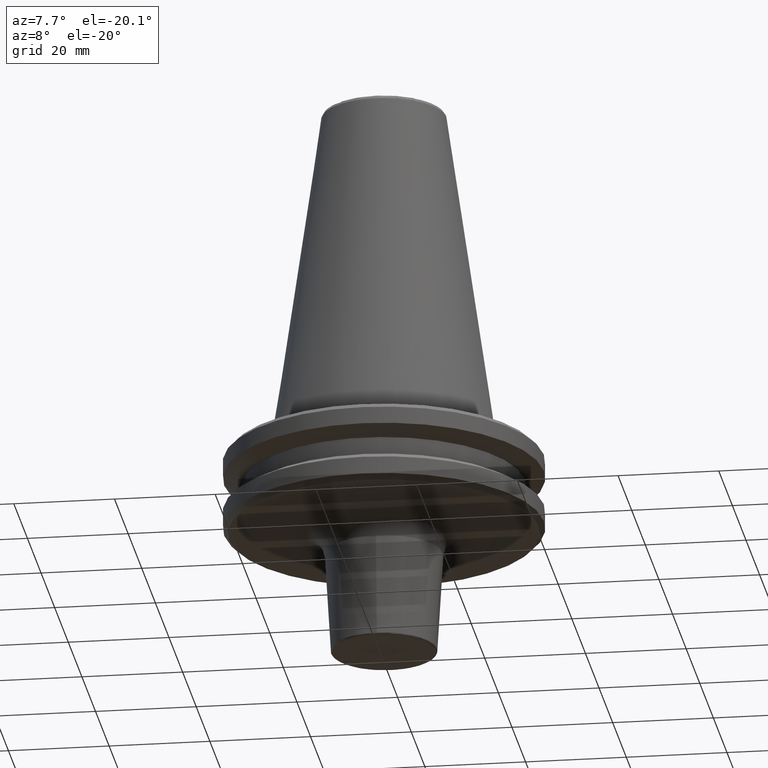
[diagram: clean part render]
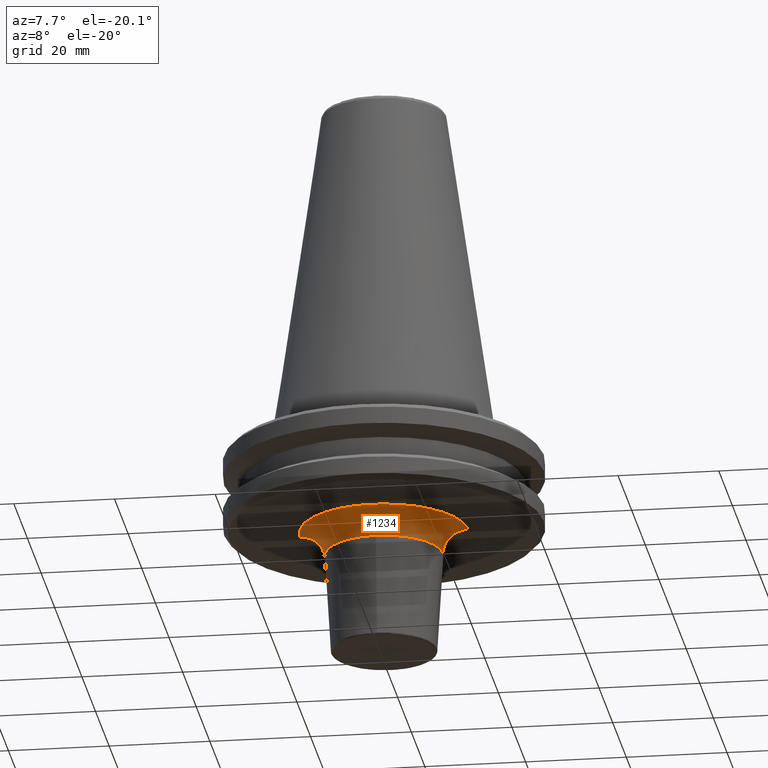
[diagram: same view with one face highlighted and labeled with its STEP entity id]
A machine part, auxiliary view. The second image highlights one B-rep face of the part: STEP entity #1234.
In plain terms, the highlighted face is a freeform B-spline surface patch.
Its self-contained STEP definition (entity closure, byte-faithful):
#3 = CARTESIAN_POINT ( 'NONE',  ( -3.273211614280688400, -16.38550312319334900, -19.10000000000000900 ) ) ;
#17 = CARTESIAN_POINT ( 'NONE',  ( -9.971919922135517900, -13.41271634861184300, -19.10000000000000500 ) ) ;
#27 = CARTESIAN_POINT ( 'NONE',  ( 2.977580239806947700, -16.44157557723119800, -19.10000000000000500 ) ) ;
#42 = CARTESIAN_POINT ( 'NONE',  ( 5.929593815002739600, -15.62173324705691100, -19.10000000000000100 ) ) ;
#54 = CARTESIAN_POINT ( 'NONE',  ( -16.33148562144074100, -3.573096658829935100, -19.10000000000000100 ) ) ;
#58 = CARTESIAN_POINT ( 'NONE',  ( -16.45283330147772500, -2.914738401242650500, -19.10000000000000500 ) ) ;
#83 = CARTESIAN_POINT ( 'NONE',  ( 7.443077310556489600, -14.97843021606886200, -19.10000000000000500 ) ) ;
#88 = CARTESIAN_POINT ( 'NONE',  ( -3.107017245632365500, -16.41761142749638900, -19.10000000000001200 ) ) ;
#111 = CARTESIAN_POINT ( 'NONE',  ( 4.361363818637564700, -16.14579171900091800, -19.10000000000000500 ) ) ;
#133 = CARTESIAN_POINT ( 'NONE',  ( -15.56066614214635800, -6.087461871301999700, -19.10000000000000100 ) ) ;
#139 = CARTESIAN_POINT ( 'NONE',  ( -16.70899191454727600, 2.046261346512933100E-015, -19.10000000000000900 ) ) ;
#172 = CARTESIAN_POINT ( 'NONE',  ( -15.62173324705783800, -5.929593814998911600, -19.10000000000000500 ) ) ;
#177 = CARTESIAN_POINT ( 'NONE',  ( -16.57242241647687900, -2.159112028500115500, -19.10000000000000900 ) ) ;
#179 = CARTESIAN_POINT ( 'NONE',  ( -3.966775875733719500, -16.23535618899792300, -19.10000000000000500 ) ) ;
#181 = CARTESIAN_POINT ( 'NONE',  ( -6.216084941042275600, -15.50973603678827800, -19.10000000000000500 ) ) ;
#188 = B_SPLINE_CURVE_WITH_KNOTS ( 'NONE', 3,
 ( #774, #835, #327, #177, #285, #228, #58, #913, #485, #54, #292, #472, #197, #172, #265, #133, #916, #782, #426, #679, #768, #465, #801, #738, #711, #357, #279, #204, #17, #684, #538, #798, #784, #639, #941, #847, #433, #1506, #201, #181, #258, #862, #249, #179, #911, #3, #297, #88, #732, #1400, #702, #663, #554, #191, #898, #495, #367, #27, #571, #302, #111, #949, #436, #42, #418, #375, #373, #1356, #83, #351, #875, #1359, #458, #1213, #483, #382, #1204, #1241, #1277, #1275, #944, #1095, #1381, #1138, #1157, #904, #923, #1267, #1081, #942, #1336, #975, #1231, #1065, #1202, #1174, #1225, #1124, #1114, #1181, #1144, #1238 ),
 .UNSPECIFIED., .F., .F.,
 ( 4, 1, 1, 1, 1, 2, 2, 1, 1, 1, 1, 2, 2, 1, 1, 1, 2, 2, 2, 1, 1, 1, 2, 2, 1, 1, 1, 1, 2, 2, 1, 1, 1, 1, 2, 2, 2, 1, 1, 1, 1, 2, 2, 1, 1, 1, 1, 2, 2, 1, 1, 1, 2, 2, 2, 1, 1, 1, 2, 2, 1, 1, 1, 1, 2, 2, 1, 1, 1, 1, 2, 2, 4 ),
 ( 0.0000000000000000000, 0.03124999999999795300, 0.04687499999999691900, 0.05468749999999639900, 0.05859374999999614900, 0.06054687499999603100, 0.06249999999999592000, 0.09374999999999432400, 0.1093749999999935300, 0.1171874999999931000, 0.1210937499999929200, 0.1230468749999928800, 0.1249999999999928400, 0.1562499999999928400, 0.1718749999999928900, 0.1796874999999929200, 0.1835937499999928700, 0.1874999999999927800, 0.2499999999999920600, 0.2812499999999917300, 0.2968749999999915600, 0.3046874999999914000, 0.3085937499999913400, 0.3124999999999912300, 0.3437499999999905600, 0.3593749999999902300, 0.3671874999999900600, 0.3710937499999899500, 0.3730468749999899500, 0.3749999999999899000, 0.4062499999999899500, 0.4218749999999899500, 0.4296874999999899500, 0.4335937499999899000, 0.4355468749999899500, 0.4374999999999900100, 0.4999999999999909000, 0.5312499999999913400, 0.5468749999999914500, 0.5546874999999916700, 0.5585937499999916700, 0.5605468749999916700, 0.5624999999999916700, 0.5937499999999923400, 0.6093749999999925600, 0.6171874999999927800, 0.6210937499999928900, 0.6230468749999927800, 0.6249999999999927800, 0.6562499999999935600, 0.6718749999999940000, 0.6796874999999941200, 0.6835937499999942300, 0.6874999999999942300, 0.7499999999999961100, 0.7812499999999971100, 0.7968749999999976700, 0.8046874999999978900, 0.8085937499999980000, 0.8124999999999981100, 0.8437499999999986700, 0.8593749999999990000, 0.8671874999999991100, 0.8710937499999992200, 0.8730468749999992200, 0.8749999999999992200, 0.9062499999999995600, 0.9218749999999997800, 0.9296874999999997800, 0.9335937499999998900, 0.9355468749999998900, 0.9374999999999998900, 1.000000000000000000 ),
 .UNSPECIFIED. ) ;
#189 = DIRECTION ( 'NONE',  ( -1.224646799147353200E-016, -1.000000000000000000, 0.0000000000000000000 ) ) ;
#191 = CARTESIAN_POINT ( 'NONE',  ( 2.158997013189260200, -16.57244369657584600, -19.10000000000000500 ) ) ;
#197 = CARTESIAN_POINT ( 'NONE',  ( -15.70488065282972600, -5.707912317699030100, -19.10000000000000500 ) ) ;
#201 = CARTESIAN_POINT ( 'NONE',  ( -6.281523939451907300, -15.48335104158634000, -19.10000000000000100 ) ) ;
#204 = CARTESIAN_POINT ( 'NONE',  ( -10.76761953157990300, -12.79983338334750300, -19.10000000000000500 ) ) ;
#228 = CARTESIAN_POINT ( 'NONE',  ( -16.46945046779879400, -2.820434997126953600, -19.10000000000000900 ) ) ;
#230 = VERTEX_POINT ( 'NONE', #513 ) ;
#249 = CARTESIAN_POINT ( 'NONE',  ( -4.880297734936129400, -15.99658572075232300, -19.10000000000000900 ) ) ;
#258 = CARTESIAN_POINT ( 'NONE',  ( -6.181971338236482300, -15.52336150878758800, -19.10000000000000500 ) ) ;
#259 = EDGE_CURVE ( 'NONE', #1043, #622, #188, .T. ) ;
#265 = CARTESIAN_POINT ( 'NONE',  ( -15.58521129710780300, -6.024348239628270800, -19.09999999999999800 ) ) ;
#279 = CARTESIAN_POINT ( 'NONE',  ( -11.40735166676703300, -12.22275759030630500, -19.10000000000000500 ) ) ;
#285 = CARTESIAN_POINT ( 'NONE',  ( -16.50631696794279100, -2.600222415168852700, -19.09999999999999800 ) ) ;
#292 = CARTESIAN_POINT ( 'NONE',  ( -16.14579171900486200, -4.361363818621245300, -19.10000000000001600 ) ) ;
#297 = CARTESIAN_POINT ( 'NONE',  ( -3.173529372140885000, -16.40488619115063100, -19.10000000000000100 ) ) ;
#302 = CARTESIAN_POINT ( 'NONE',  ( 3.573096658839261000, -16.33148562143848900, -19.10000000000000500 ) ) ;
#326 = CARTESIAN_POINT ( 'NONE',  ( -11.71796768721838500, 1.740649254289672300E-015, -23.80053854636027200 ) ) ;
#327 = CARTESIAN_POINT ( 'NONE',  ( -16.67412310652929700, -1.274150364152470500, -19.10000000000000500 ) ) ;
#335 = ORIENTED_EDGE ( 'NONE', *, *, #965, .F. ) ;
#351 = CARTESIAN_POINT ( 'NONE',  ( 8.304593459409087300, -14.50404968136377400, -19.10000000000000500 ) ) ;
#357 = CARTESIAN_POINT ( 'NONE',  ( -12.63042113516865900, -10.99960928809012200, -19.10000000000000900 ) ) ;
#367 = CARTESIAN_POINT ( 'NONE',  ( 2.914717349333073600, -16.45283719649584200, -19.10000000000000500 ) ) ;
#373 = CARTESIAN_POINT ( 'NONE',  ( 6.117688604166877700, -15.54881040975424100, -19.10000000000000100 ) ) ;
#375 = CARTESIAN_POINT ( 'NONE',  ( 6.087461871303152500, -15.56066614214608600, -19.10000000000000500 ) ) ;
#382 = CARTESIAN_POINT ( 'NONE',  ( 10.99960928808820300, -12.63042113516870500, -19.10000000000000100 ) ) ;
#399 = DIRECTION ( 'NONE',  ( 1.000000000000000000, 0.0000000000000000000, 0.0000000000000000000 ) ) ;
#400 = DIRECTION ( 'NONE',  ( -0.0000000000000000000, -0.0000000000000000000, -1.000000000000000000 ) ) ;
#402 = CARTESIAN_POINT ( 'NONE',  ( 0.0000000000000000000, 0.0000000000000000000, -23.80053854636027200 ) ) ;
#418 = CARTESIAN_POINT ( 'NONE',  ( 6.024348239630517900, -15.58521129710726400, -19.10000000000000900 ) ) ;
#426 = CARTESIAN_POINT ( 'NONE',  ( -14.97843021606744300, -7.443077310566718700, -19.10000000000000500 ) ) ;
#430 = ORIENTED_EDGE ( 'NONE', *, *, #259, .F. ) ;
#433 = CARTESIAN_POINT ( 'NONE',  ( -6.607123291484789700, -15.34836918350315900, -19.10000000000000900 ) ) ;
#436 = CARTESIAN_POINT ( 'NONE',  ( 5.707912317706178100, -15.70488065282799400, -19.10000000000000100 ) ) ;
#458 = CARTESIAN_POINT ( 'NONE',  ( 9.024928931269119700, -14.06222087813214100, -19.10000000000000100 ) ) ;
#465 = CARTESIAN_POINT ( 'NONE',  ( -14.13790343973139900, -8.905924171326432800, -19.10000000000000500 ) ) ;
#472 = CARTESIAN_POINT ( 'NONE',  ( -15.86289355459404000, -5.262197963773768800, -19.10000000000000900 ) ) ;
#483 = CARTESIAN_POINT ( 'NONE',  ( 10.10853159733515700, -13.35436265844308100, -19.10000000000000500 ) ) ;
#485 = CARTESIAN_POINT ( 'NONE',  ( -16.43620118971364300, -3.007126828542805000, -19.10000000000000900 ) ) ;
#495 = CARTESIAN_POINT ( 'NONE',  ( 2.820399054842309500, -16.46945711782972300, -19.10000000000000100 ) ) ;
#513 = CARTESIAN_POINT ( 'NONE',  ( 11.71796768721838500, 0.0000000000000000000, -23.80053854636027200 ) ) ;
#538 = CARTESIAN_POINT ( 'NONE',  ( -9.383296176287753800, -13.82569420036865400, -19.10000000000000100 ) ) ;
#540 = CARTESIAN_POINT ( 'NONE',  ( -16.70899191454727600, 2.046261346512933100E-015, -24.10000000000000900 ) ) ;
#554 = CARTESIAN_POINT ( 'NONE',  ( 1.273997010404657000, -16.67415147999460200, -19.09999999999999800 ) ) ;
#557 = CARTESIAN_POINT ( 'NONE',  ( 0.0000000000000000000, -11.71796768721838700, -23.80053854636027200 ) ) ;
#565 = CIRCLE ( 'NONE', #641, 11.71796768721838500 ) ;
#571 = CARTESIAN_POINT ( 'NONE',  ( 3.007126828542220100, -16.43620118971378800, -19.10000000000000100 ) ) ;
#622 = VERTEX_POINT ( 'NONE', #734 ) ;
#635 = DIRECTION ( 'NONE',  ( 1.000000000000000000, 0.0000000000000000000, 0.0000000000000000000 ) ) ;
#638 = DIRECTION ( 'NONE',  ( -0.0000000000000000000, -0.0000000000000000000, -1.000000000000000000 ) ) ;
#639 = CARTESIAN_POINT ( 'NONE',  ( -8.670871838085728800, -14.29425141743120700, -19.10000000000001200 ) ) ;
#641 = AXIS2_PLACEMENT_3D ( 'NONE', #402, #400, #399 ) ;
#645 = CARTESIAN_POINT ( 'NONE',  ( 0.0000000000000000000, 0.0000000000000000000, -23.80053854636027200 ) ) ;
#663 = CARTESIAN_POINT ( 'NONE',  ( 0.5108254936954539400, -16.70900812795602500, -19.10000000000000500 ) ) ;
#679 = CARTESIAN_POINT ( 'NONE',  ( -14.50404968136270500, -8.304593459416755900, -19.10000000000000500 ) ) ;
#684 = CARTESIAN_POINT ( 'NONE',  ( -9.561733754481810600, -13.70406479958975000, -19.10000000000000900 ) ) ;
#702 = CARTESIAN_POINT ( 'NONE',  ( -1.021650987390918500, -16.70895948772979600, -19.10000000000000500 ) ) ;
#711 = CARTESIAN_POINT ( 'NONE',  ( -13.35436265842180800, -10.10853159735829700, -19.10000000000000900 ) ) ;
#713 = DIRECTION ( 'NONE',  ( 1.000000000000000000, 0.0000000000000000000, 0.0000000000000000000 ) ) ;
#719 = DIRECTION ( 'NONE',  ( 0.0000000000000000000, 1.000000000000000000, 0.0000000000000000000 ) ) ;
#722 = CARTESIAN_POINT ( 'NONE',  ( 16.70899191454727600, 0.0000000000000000000, -24.10000000000000900 ) ) ;
#732 = CARTESIAN_POINT ( 'NONE',  ( -3.071812577893335000, -16.42423099643890400, -19.10000000000000900 ) ) ;
#734 = CARTESIAN_POINT ( 'NONE',  ( 16.70899191454727600, 0.0000000000000000000, -19.10000000000000900 ) ) ;
#738 = CARTESIAN_POINT ( 'NONE',  ( -14.02478801515500200, -9.082997829093468300, -19.10000000000000100 ) ) ;
#768 = CARTESIAN_POINT ( 'NONE',  ( -14.25024019506290600, -8.726806685069393100, -19.10000000000000500 ) ) ;
#774 = CARTESIAN_POINT ( 'NONE',  ( -16.70899191454727600, 2.046261346512933100E-015, -19.10000000000000900 ) ) ;
#782 = CARTESIAN_POINT ( 'NONE',  ( -15.32806192370888500, -6.675338272904193500, -19.10000000000000100 ) ) ;
#784 = CARTESIAN_POINT ( 'NONE',  ( -9.202379783222259100, -13.94673870596901100, -19.09999999999999800 ) ) ;
#798 = CARTESIAN_POINT ( 'NONE',  ( -9.263750344971168000, -13.90606175176152200, -19.10000000000000100 ) ) ;
#801 = CARTESIAN_POINT ( 'NONE',  ( -14.06222087813193900, -9.024928931270535400, -19.10000000000000900 ) ) ;
#806 = EDGE_CURVE ( 'NONE', #230, #622, #1032, .T. ) ;
#835 = CARTESIAN_POINT ( 'NONE',  ( -16.70899191454728000, -0.5109131244084913500, -19.10000000000000500 ) ) ;
#847 = CARTESIAN_POINT ( 'NONE',  ( -7.057990164154163400, -15.14986894320940700, -19.10000000000000500 ) ) ;
#862 = CARTESIAN_POINT ( 'NONE',  ( -5.646814527784786500, -15.73524433917605400, -19.10000000000001200 ) ) ;
#875 = CARTESIAN_POINT ( 'NONE',  ( 8.726806685064914900, -14.25024019506352800, -19.10000000000000900 ) ) ;
#892 = AXIS2_PLACEMENT_3D ( 'NONE', #645, #638, #635 ) ;
#898 = CARTESIAN_POINT ( 'NONE',  ( 2.600155322904186100, -16.50632938133387000, -19.10000000000000500 ) ) ;
#904 = CARTESIAN_POINT ( 'NONE',  ( 15.14986894320871600, -7.057990164153359600, -19.09999999999999800 ) ) ;
#908 = VERTEX_POINT ( 'NONE', #557 ) ;
#911 = CARTESIAN_POINT ( 'NONE',  ( -3.505201879246102200, -16.33820947055570400, -19.10000000000000900 ) ) ;
#913 = CARTESIAN_POINT ( 'NONE',  ( -16.44157358222192400, -2.977591022492342500, -19.10000000000000900 ) ) ;
#916 = CARTESIAN_POINT ( 'NONE',  ( -15.54881040975429900, -6.117688604166509100, -19.10000000000000900 ) ) ;
#923 = CARTESIAN_POINT ( 'NONE',  ( 15.34836918350276500, -6.607123291484316300, -19.10000000000000500 ) ) ;
#941 = CARTESIAN_POINT ( 'NONE',  ( -7.942429230617609200, -14.71973580530950100, -19.10000000000000500 ) ) ;
#942 = CARTESIAN_POINT ( 'NONE',  ( 15.50973603678822100, -6.216084941042199200, -19.10000000000000900 ) ) ;
#944 = CARTESIAN_POINT ( 'NONE',  ( 13.82569420036909100, -9.383296176287741400, -19.10000000000000500 ) ) ;
#949 = CARTESIAN_POINT ( 'NONE',  ( 5.262197963786015000, -15.86289355459108000, -19.10000000000000500 ) ) ;
#965 = EDGE_CURVE ( 'NONE', #908, #1012, #565, .T. ) ;
#975 = CARTESIAN_POINT ( 'NONE',  ( 15.73524433917540600, -5.646814527788255800, -19.10000000000000900 ) ) ;
#1012 = VERTEX_POINT ( 'NONE', #326 ) ;
#1032 = CIRCLE ( 'NONE', #1289, 4.999999999999997300 ) ;
#1043 = VERTEX_POINT ( 'NONE', #139 ) ;
#1065 = CARTESIAN_POINT ( 'NONE',  ( 16.23535618899707700, -3.966775875738274100, -19.10000000000000100 ) ) ;
#1072 = ORIENTED_EDGE ( 'NONE', *, *, #806, .T. ) ;
#1081 = CARTESIAN_POINT ( 'NONE',  ( 15.48335104158621300, -6.281523939451759000, -19.10000000000000100 ) ) ;
#1095 = CARTESIAN_POINT ( 'NONE',  ( 13.90606175176176000, -9.263750344971166200, -19.10000000000000900 ) ) ;
#1114 = CARTESIAN_POINT ( 'NONE',  ( 16.42422998240047600, -3.071818056659796300, -19.10000000000000500 ) ) ;
#1124 = CARTESIAN_POINT ( 'NONE',  ( 16.41761142749630100, -3.107017245632790000, -19.10000000000000100 ) ) ;
#1136 = CIRCLE ( 'NONE', #892, 11.71796768721838500 ) ;
#1138 = CARTESIAN_POINT ( 'NONE',  ( 14.29425141743069200, -8.670871838085108900, -19.10000000000000900 ) ) ;
#1141 = EDGE_CURVE ( 'NONE', #1012, #1043, #1525, .T. ) ;
#1144 = CARTESIAN_POINT ( 'NONE',  ( 16.70899191454728300, -1.022181789248412000, -19.10000000000000900 ) ) ;
#1149 = EDGE_LOOP ( 'NONE', ( #1203, #335, #1465, #1072, #430 ) ) ;
#1154 =( BOUNDED_SURFACE ( )  B_SPLINE_SURFACE ( 3, 3, ( 
 ( #1396, #1352, #1351, #1342 ),
 ( #1322, #1320, #1317, #1313 ),
 ( #1285, #1282, #1236, #1232 ),
 ( #1227, #1219, #1201, #1190 ) ),
 .UNSPECIFIED., .F., .F., .T. ) 
 B_SPLINE_SURFACE_WITH_KNOTS ( ( 4, 4 ),
 ( 4, 4 ),
 ( 0.0000000000000000000, 1.000000000000000000 ),
 ( 0.0000000000000000000, 1.000000000000000000 ),
 .UNSPECIFIED. ) 
 GEOMETRIC_REPRESENTATION_ITEM ( )  RATIONAL_B_SPLINE_SURFACE ( (
 ( 1.000000000000000000, 0.3333333333333334300, 0.3333333333333334300, 1.000000000000000000),
 ( 0.8186493336483505700, 0.2728831112161169100, 0.2728831112161169100, 0.8186493336483505700),
 ( 0.8186493336483505700, 0.2728831112161169100, 0.2728831112161169100, 0.8186493336483505700),
 ( 1.000000000000000000, 0.3333333333333334300, 0.3333333333333334300, 1.000000000000000000) ) ) 
 REPRESENTATION_ITEM ( '' )  SURFACE ( )  );
#1157 = CARTESIAN_POINT ( 'NONE',  ( 14.71973580530859300, -7.942429230616533600, -19.10000000000000900 ) ) ;
#1174 = CARTESIAN_POINT ( 'NONE',  ( 16.38550312319306800, -3.273211614282113500, -19.10000000000000500 ) ) ;
#1181 = CARTESIAN_POINT ( 'NONE',  ( 16.61600842649934900, -2.035654846415355200, -19.10000000000000500 ) ) ;
#1189 = AXIS2_PLACEMENT_3D ( 'NONE', #540, #189, #1333 ) ;
#1190 = CARTESIAN_POINT ( 'NONE',  ( 16.70899191454728000, -4.092522693025866900E-015, -19.10000000000001200 ) ) ;
#1201 = CARTESIAN_POINT ( 'NONE',  ( 16.70899191454727300, -33.41798382909456000, -19.10000000000001200 ) ) ;
#1202 = CARTESIAN_POINT ( 'NONE',  ( 16.33820947055519900, -3.505201879248752900, -19.10000000000000100 ) ) ;
#1203 = ORIENTED_EDGE ( 'NONE', *, *, #1141, .F. ) ;
#1204 = CARTESIAN_POINT ( 'NONE',  ( 12.22275759030725300, -11.40735166676702100, -19.10000000000000100 ) ) ;
#1213 = CARTESIAN_POINT ( 'NONE',  ( 9.082997829094914300, -14.02478801515367100, -19.10000000000000500 ) ) ;
#1219 = CARTESIAN_POINT ( 'NONE',  ( -16.70899191454728300, -33.41798382909455300, -19.10000000000001200 ) ) ;
#1225 = CARTESIAN_POINT ( 'NONE',  ( 16.40488619115047400, -3.173529372141715500, -19.10000000000000500 ) ) ;
#1227 = CARTESIAN_POINT ( 'NONE',  ( -16.70899191454728000, 2.046261346512933500E-015, -19.10000000000001200 ) ) ;
#1231 = CARTESIAN_POINT ( 'NONE',  ( 15.99658572075119500, -4.880297734942206300, -19.10000000000000900 ) ) ;
#1232 = CARTESIAN_POINT ( 'NONE',  ( 13.91738258006084200, -3.408775605836127600E-015, -19.10000000000000900 ) ) ;
#1234 = ADVANCED_FACE ( 'NONE', ( #1292 ), #1154, .F. ) ;
#1236 = CARTESIAN_POINT ( 'NONE',  ( 13.91738258006083700, -27.83476516012168000, -19.10000000000001600 ) ) ;
#1238 = CARTESIAN_POINT ( 'NONE',  ( 16.70899191454727600, 0.0000000000000000000, -19.10000000000000900 ) ) ;
#1241 = CARTESIAN_POINT ( 'NONE',  ( 12.79983338334917600, -10.76761953157986300, -19.10000000000000500 ) ) ;
#1267 = CARTESIAN_POINT ( 'NONE',  ( 15.44347772148577200, -6.379528020290430300, -19.10000000000000500 ) ) ;
#1275 = CARTESIAN_POINT ( 'NONE',  ( 13.70406479959048000, -9.561733754481792900, -19.10000000000000500 ) ) ;
#1277 = CARTESIAN_POINT ( 'NONE',  ( 13.41271634861309900, -9.971919922135493100, -19.10000000000000900 ) ) ;
#1282 = CARTESIAN_POINT ( 'NONE',  ( -13.91738258006084400, -27.83476516012168000, -19.10000000000001600 ) ) ;
#1285 = CARTESIAN_POINT ( 'NONE',  ( -13.91738258006084200, 1.704387802918063800E-015, -19.10000000000000900 ) ) ;
#1289 = AXIS2_PLACEMENT_3D ( 'NONE', #722, #719, #713 ) ;
#1292 = FACE_OUTER_BOUND ( 'NONE', #1149, .T. ) ;
#1313 = CARTESIAN_POINT ( 'NONE',  ( 11.88516356507829700, -2.911025503463176600E-015, -21.01394058202840800 ) ) ;
#1317 = CARTESIAN_POINT ( 'NONE',  ( 11.88516356507829400, -23.77032713015659500, -21.01394058202841500 ) ) ;
#1320 = CARTESIAN_POINT ( 'NONE',  ( -11.88516356507830100, -23.77032713015659100, -21.01394058202841500 ) ) ;
#1322 = CARTESIAN_POINT ( 'NONE',  ( -11.88516356507829700, 1.455512751731588300E-015, -21.01394058202840800 ) ) ;
#1333 = DIRECTION ( 'NONE',  ( -1.000000000000000000, 1.224646799147353500E-016, 0.0000000000000000000 ) ) ;
#1336 = CARTESIAN_POINT ( 'NONE',  ( 15.52336150878763200, -6.181971338236262900, -19.10000000000000500 ) ) ;
#1342 = CARTESIAN_POINT ( 'NONE',  ( 11.71796768721838500, -2.870074324132821900E-015, -23.80053854636027200 ) ) ;
#1351 = CARTESIAN_POINT ( 'NONE',  ( 11.71796768721838000, -23.43593537443677000, -23.80053854636027200 ) ) ;
#1352 = CARTESIAN_POINT ( 'NONE',  ( -11.71796768721838900, -23.43593537443676700, -23.80053854636027200 ) ) ;
#1356 = CARTESIAN_POINT ( 'NONE',  ( 6.675338272898357200, -15.32806192370968800, -19.10000000000000500 ) ) ;
#1359 = CARTESIAN_POINT ( 'NONE',  ( 8.905924171323739800, -14.13790343973177600, -19.10000000000000500 ) ) ;
#1381 = CARTESIAN_POINT ( 'NONE',  ( 13.94673870596907700, -9.202379783222339100, -19.10000000000000500 ) ) ;
#1396 = CARTESIAN_POINT ( 'NONE',  ( -11.71796768721838500, 1.435037162066410900E-015, -23.80053854636027200 ) ) ;
#1400 = CARTESIAN_POINT ( 'NONE',  ( -2.035830166942192800, -16.61597597726980200, -19.10000000000000500 ) ) ;
#1436 = EDGE_CURVE ( 'NONE', #230, #908, #1136, .T. ) ;
#1465 = ORIENTED_EDGE ( 'NONE', *, *, #1436, .F. ) ;
#1506 = CARTESIAN_POINT ( 'NONE',  ( -6.379528020290683400, -15.44347772148599400, -19.10000000000000900 ) ) ;
#1525 = CIRCLE ( 'NONE', #1189, 4.999999999999997300 ) ;